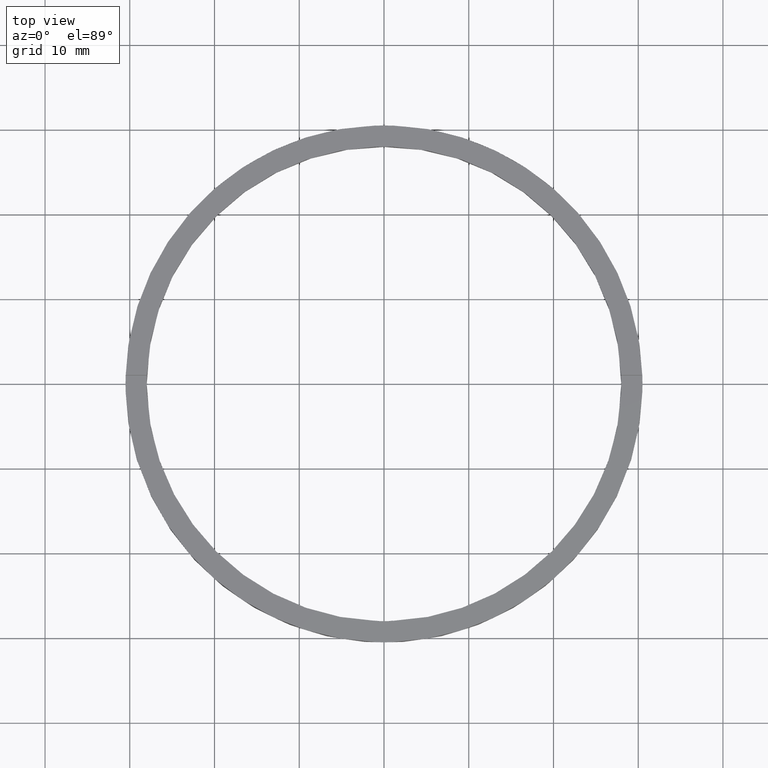
[diagram: clean part render]
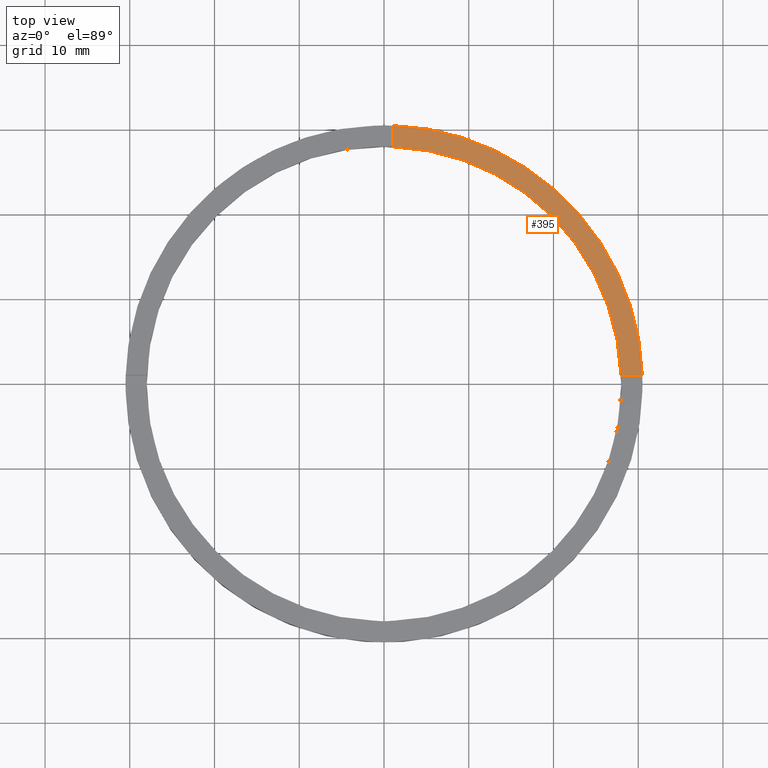
[diagram: same view with one face highlighted and labeled with its STEP entity id]
A machine part, top view. The second image highlights one B-rep face of the part: STEP entity #395.
In plain terms, the highlighted planar face has unit normal (0, 0, 1).
Its self-contained STEP definition (entity closure, byte-faithful):
#65 = EDGE_CURVE ( 'NONE', #274, #781, #180, .T. ) ;
#69 = CIRCLE ( 'NONE', #480, 28.00000000000000000 ) ;
#83 = VECTOR ( 'NONE', #217, 1000.000000000000000 ) ;
#131 = DIRECTION ( 'NONE',  ( 0.000000000000000000, 0.000000000000000000, 1.000000000000000000 ) ) ;
#132 = DIRECTION ( 'NONE',  ( 0.000000000000000000, 1.000000000000000000, 0.000000000000000000 ) ) ;
#135 = CARTESIAN_POINT ( 'NONE',  ( 0.000000000000000000, 0.000000000000000000, 3.000000000000000000 ) ) ;
#177 = ORIENTED_EDGE ( 'NONE', *, *, #657, .F. ) ;
#180 = LINE ( 'NONE', #559, #206 ) ;
#196 = DIRECTION ( 'NONE',  ( 0.000000000000000000, 0.000000000000000000, 1.000000000000000000 ) ) ;
#206 = VECTOR ( 'NONE', #132, 1000.000000000000000 ) ;
#217 = DIRECTION ( 'NONE',  ( -1.000000000000000000, -6.505213034913025371E-17, -0.000000000000000000 ) ) ;
#258 = DIRECTION ( 'NONE',  ( 1.000000000000000000, 0.000000000000000000, -0.000000000000000000 ) ) ;
#274 = VERTEX_POINT ( 'NONE', #320 ) ;
#306 = FACE_OUTER_BOUND ( 'NONE', #326, .T. ) ;
#317 = ORIENTED_EDGE ( 'NONE', *, *, #694, .F. ) ;
#320 = CARTESIAN_POINT ( 'NONE',  ( 0.9999999999999754641, 27.98213715926644696, 3.000000000000000000 ) ) ;
#326 = EDGE_LOOP ( 'NONE', ( #699, #317, #177, #778 ) ) ;
#332 = LINE ( 'NONE', #635, #83 ) ;
#345 = CARTESIAN_POINT ( 'NONE',  ( 30.48360214935236456, 0.9999999999998412381, 3.000000000000000000 ) ) ;
#348 = CARTESIAN_POINT ( 'NONE',  ( 0.000000000000000000, 0.000000000000000000, 3.000000000000000000 ) ) ;
#395 = ADVANCED_FACE ( 'NONE', ( #306 ), #482, .T. ) ;
#402 = DIRECTION ( 'NONE',  ( 0.000000000000000000, 0.000000000000000000, 1.000000000000000000 ) ) ;
#409 = AXIS2_PLACEMENT_3D ( 'NONE', #135, #196, #672 ) ;
#432 = EDGE_CURVE ( 'NONE', #580, #781, #562, .T. ) ;
#450 = CARTESIAN_POINT ( 'NONE',  ( 0.9999999999999754641, 30.48360214935236101, 3.000000000000000000 ) ) ;
#460 = DIRECTION ( 'NONE',  ( 1.000000000000000000, 0.000000000000000000, 0.000000000000000000 ) ) ;
#480 = AXIS2_PLACEMENT_3D ( 'NONE', #348, #402, #460 ) ;
#482 = PLANE ( 'NONE',  #528 ) ;
#528 = AXIS2_PLACEMENT_3D ( 'NONE', #544, #131, #258 ) ;
#544 = CARTESIAN_POINT ( 'NONE',  ( 0.000000000000000000, 0.000000000000000000, 3.000000000000000000 ) ) ;
#559 = CARTESIAN_POINT ( 'NONE',  ( 0.9999999999999754641, 20.49999999999999645, 3.000000000000000000 ) ) ;
#562 = CIRCLE ( 'NONE', #409, 30.50000000000000000 ) ;
#580 = VERTEX_POINT ( 'NONE', #345 ) ;
#635 = CARTESIAN_POINT ( 'NONE',  ( 20.49999999999999289, 0.9999999999998406830, 3.000000000000000000 ) ) ;
#657 = EDGE_CURVE ( 'NONE', #580, #738, #332, .T. ) ;
#672 = DIRECTION ( 'NONE',  ( 1.000000000000000000, 0.000000000000000000, 0.000000000000000000 ) ) ;
#694 = EDGE_CURVE ( 'NONE', #738, #274, #69, .T. ) ;
#699 = ORIENTED_EDGE ( 'NONE', *, *, #65, .F. ) ;
#738 = VERTEX_POINT ( 'NONE', #766 ) ;
#766 = CARTESIAN_POINT ( 'NONE',  ( 27.98213715926645051, 0.9999999999998411271, 3.000000000000000000 ) ) ;
#778 = ORIENTED_EDGE ( 'NONE', *, *, #432, .T. ) ;
#781 = VERTEX_POINT ( 'NONE', #450 ) ;